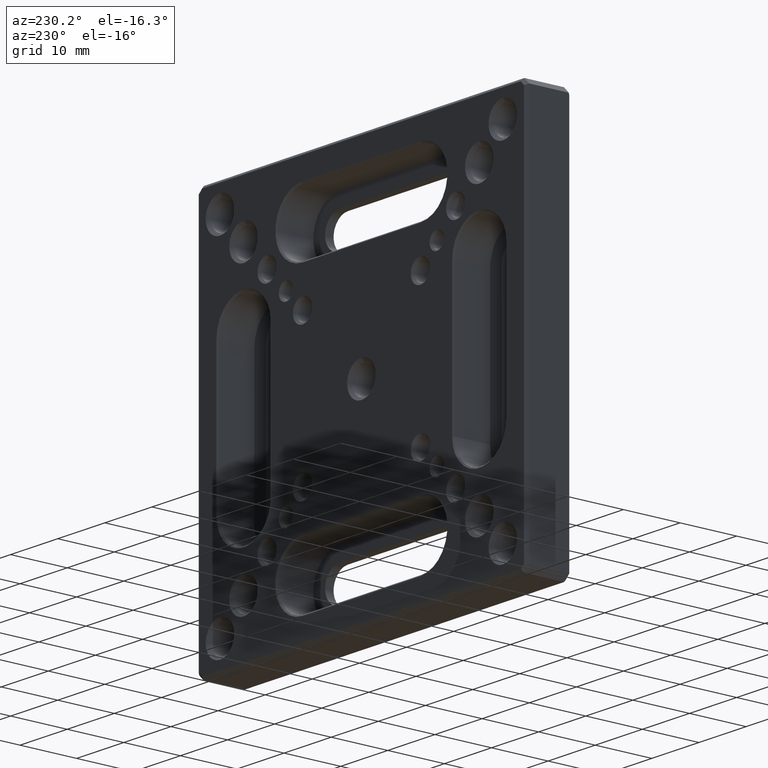
[diagram: clean part render]
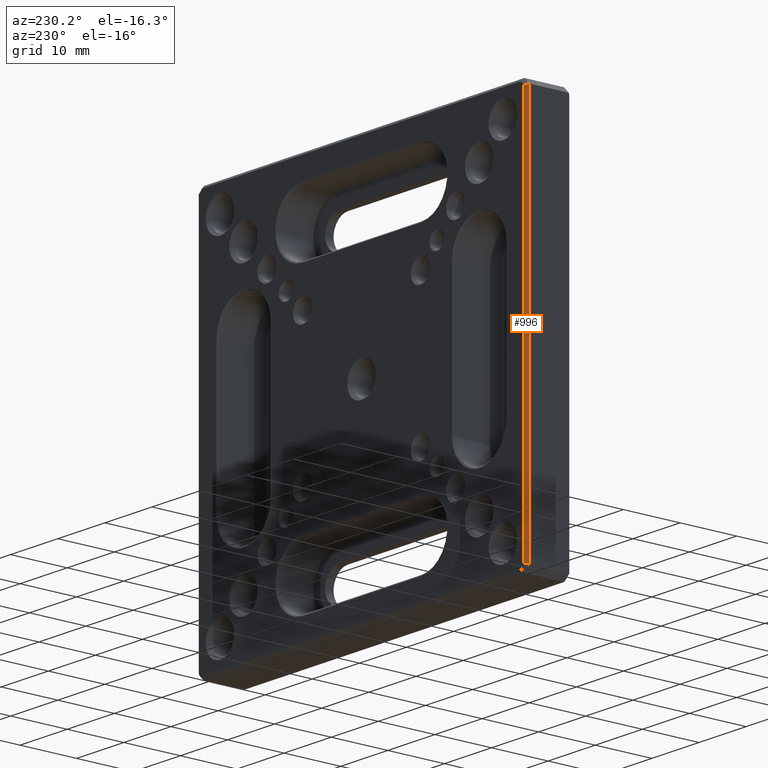
[diagram: same view with one face highlighted and labeled with its STEP entity id]
A machine part, auxiliary view. The second image highlights one B-rep face of the part: STEP entity #996.
In plain terms, the highlighted planar face has unit normal (-0.7071, 0.7071, 0).
Its self-contained STEP definition (entity closure, byte-faithful):
#105 = DIRECTION ( 'NONE',  ( -1.982541115402065110E-16, 0.000000000000000000, -1.000000000000000000 ) ) ;
#346 = DIRECTION ( 'NONE',  ( 1.982541115402065110E-16, 0.000000000000000000, 1.000000000000000000 ) ) ;
#362 = DIRECTION ( 'NONE',  ( -0.7071067811865475727, 0.7071067811865475727, 1.401868266681941928E-16 ) ) ;
#425 = CARTESIAN_POINT ( 'NONE',  ( -35.00000000000000711, 7.500000000000013323, -34.00000000000002132 ) ) ;
#527 = ORIENTED_EDGE ( 'NONE', *, *, #2038, .F. ) ;
#672 = DIRECTION ( 'NONE',  ( -1.982541115402065110E-16, 0.000000000000000000, -1.000000000000000000 ) ) ;
#704 = VECTOR ( 'NONE', #346, 1000.000000000000000 ) ;
#878 = CARTESIAN_POINT ( 'NONE',  ( -34.50000000000000711, 8.000000000000000000, 33.99999999999999289 ) ) ;
#892 = LINE ( 'NONE', #878, #704 ) ;
#973 = CARTESIAN_POINT ( 'NONE',  ( -34.50000000000002132, 8.000000000000000000, -33.79289321881348229 ) ) ;
#996 = ADVANCED_FACE ( 'NONE', ( #1885 ), #2803, .T. ) ;
#1306 = ORIENTED_EDGE ( 'NONE', *, *, #2027, .F. ) ;
#1422 = AXIS2_PLACEMENT_3D ( 'NONE', #2264, #362, #105 ) ;
#1443 = CARTESIAN_POINT ( 'NONE',  ( -34.40462821508468494, 8.095371784915338154, -33.75338893203382185 ) ) ;
#1459 = LINE ( 'NONE', #1443, #1746 ) ;
#1523 = LINE ( 'NONE', #2582, #1704 ) ;
#1691 = CARTESIAN_POINT ( 'NONE',  ( -34.50000000000000711, 8.000000000000000000, 33.79289321881345387 ) ) ;
#1704 = VECTOR ( 'NONE', #672, 1000.000000000000000 ) ;
#1746 = VECTOR ( 'NONE', #2222, 1000.000000000000000 ) ;
#1773 = EDGE_CURVE ( 'NONE', #2385, #3024, #1523, .T. ) ;
#1855 = EDGE_LOOP ( 'NONE', ( #2517, #2413, #527, #1306 ) ) ;
#1885 = FACE_OUTER_BOUND ( 'NONE', #1855, .T. ) ;
#2027 = EDGE_CURVE ( 'NONE', #3085, #2547, #892, .T. ) ;
#2035 = VECTOR ( 'NONE', #2217, 1000.000000000000114 ) ;
#2038 = EDGE_CURVE ( 'NONE', #2547, #2385, #2437, .T. ) ;
#2217 = DIRECTION ( 'NONE',  ( -0.6785983445458462215, -0.6785983445458463326, 0.2810846377148234487 ) ) ;
#2222 = DIRECTION ( 'NONE',  ( -0.6785983445458476648, -0.6785983445458476648, -0.2810846377148171760 ) ) ;
#2264 = CARTESIAN_POINT ( 'NONE',  ( -34.50000000000001421, 8.000000000000000000, 6.839766848137127932E-15 ) ) ;
#2385 = VERTEX_POINT ( 'NONE', #2577 ) ;
#2413 = ORIENTED_EDGE ( 'NONE', *, *, #1773, .F. ) ;
#2437 = LINE ( 'NONE', #2733, #2035 ) ;
#2517 = ORIENTED_EDGE ( 'NONE', *, *, #2900, .T. ) ;
#2547 = VERTEX_POINT ( 'NONE', #1691 ) ;
#2577 = CARTESIAN_POINT ( 'NONE',  ( -34.99999999999999289, 7.500000000000013323, 33.99999999999999289 ) ) ;
#2582 = CARTESIAN_POINT ( 'NONE',  ( -35.00000000000000711, 7.500000000000013323, -34.00000000000002132 ) ) ;
#2733 = CARTESIAN_POINT ( 'NONE',  ( -28.05422291254101097, 14.44577708745899791, 31.12296492915415413 ) ) ;
#2803 = PLANE ( 'NONE',  #1422 ) ;
#2900 = EDGE_CURVE ( 'NONE', #3085, #3024, #1459, .T. ) ;
#3024 = VERTEX_POINT ( 'NONE', #425 ) ;
#3085 = VERTEX_POINT ( 'NONE', #973 ) ;